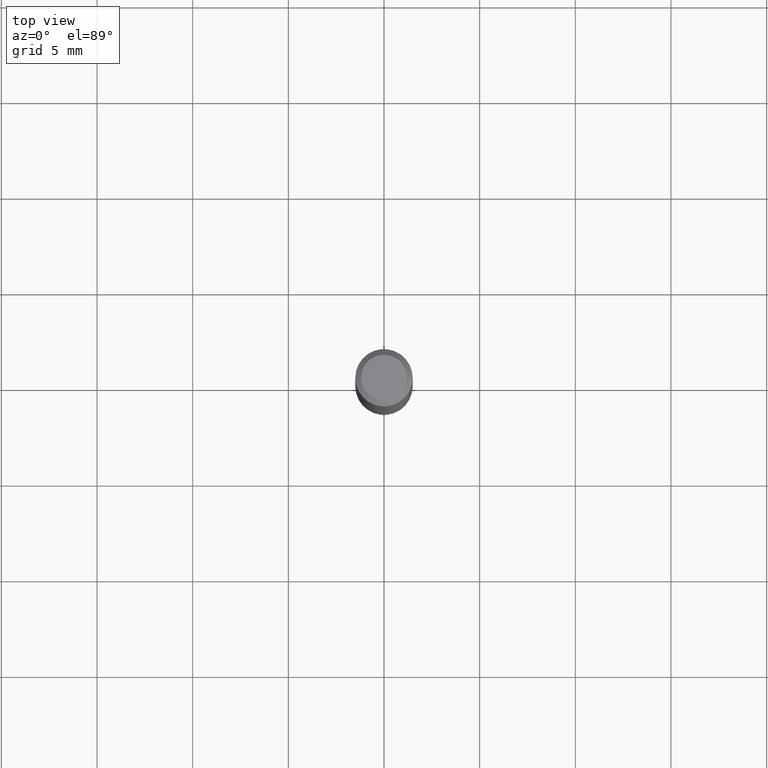
[diagram: clean part render]
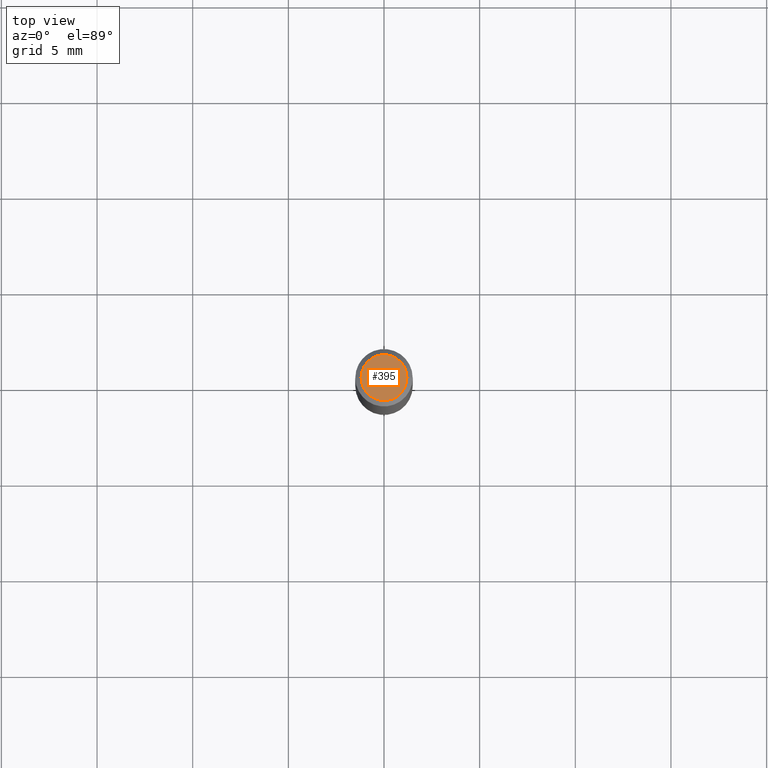
[diagram: same view with one face highlighted and labeled with its STEP entity id]
A machine part, top view. The second image highlights one B-rep face of the part: STEP entity #395.
In plain terms, the highlighted planar face has unit normal (0, -0, -1).
Its self-contained STEP definition (entity closure, byte-faithful):
#55 = EDGE_CURVE ( 'NONE', #350, #234, #171, .T. ) ;
#56 = CARTESIAN_POINT ( 'NONE',  ( -0.04724000000000000421, 3.504923541997677355E-16, -3.380025165670481712E-19 ) ) ;
#69 = AXIS2_PLACEMENT_3D ( 'NONE', #432, #141, #296 ) ;
#77 = FACE_OUTER_BOUND ( 'NONE', #252, .T. ) ;
#99 = AXIS2_PLACEMENT_3D ( 'NONE', #311, #269, #193 ) ;
#141 = DIRECTION ( 'NONE',  ( -2.445468806185136597E-29, 3.491481338843145583E-15, 1.000000000000000000 ) ) ;
#171 = CIRCLE ( 'NONE', #196, 0.04724000000000000421 ) ;
#185 = DIRECTION ( 'NONE',  ( 1.000000000000000000, -6.982962677686266711E-15, 4.876185090822587894E-29 ) ) ;
#193 = DIRECTION ( 'NONE',  ( -1.000000000000000000, 6.982962677686265922E-15, -4.876176775795935793E-29 ) ) ;
#196 = AXIS2_PLACEMENT_3D ( 'NONE', #338, #342, #185 ) ;
#221 = EDGE_CURVE ( 'NONE', #234, #350, #478, .T. ) ;
#234 = VERTEX_POINT ( 'NONE', #56 ) ;
#252 = EDGE_LOOP ( 'NONE', ( #448, #429 ) ) ;
#269 = DIRECTION ( 'NONE',  ( 2.438088387897960049E-29, -3.491481338843145188E-15, -1.000000000000000000 ) ) ;
#272 = PLANE ( 'NONE',  #99 ) ;
#296 = DIRECTION ( 'NONE',  ( 1.000000000000000000, -6.982962677686266711E-15, 4.876185090822587894E-29 ) ) ;
#311 = CARTESIAN_POINT ( 'NONE',  ( 4.132873053354867254E-48, -5.900647395337818946E-34, -1.690012582823346072E-19 ) ) ;
#338 = CARTESIAN_POINT ( 'NONE',  ( 8.265746106709734507E-48, -1.180129479067563789E-33, -3.380025165646692144E-19 ) ) ;
#342 = DIRECTION ( 'NONE',  ( -2.445468806185136597E-29, 3.491481338843145583E-15, 1.000000000000000000 ) ) ;
#350 = VERTEX_POINT ( 'NONE', #477 ) ;
#395 = ADVANCED_FACE ( 'NONE', ( #77 ), #272, .F. ) ;
#429 = ORIENTED_EDGE ( 'NONE', *, *, #55, .T. ) ;
#432 = CARTESIAN_POINT ( 'NONE',  ( 8.265746106709734507E-48, -1.180129479067563789E-33, -3.380025165646692144E-19 ) ) ;
#448 = ORIENTED_EDGE ( 'NONE', *, *, #221, .T. ) ;
#477 = CARTESIAN_POINT ( 'NONE',  ( 0.04724000000000000421, -3.852183633974369838E-16, -3.380025165621689721E-19 ) ) ;
#478 = CIRCLE ( 'NONE', #69, 0.04724000000000000421 ) ;